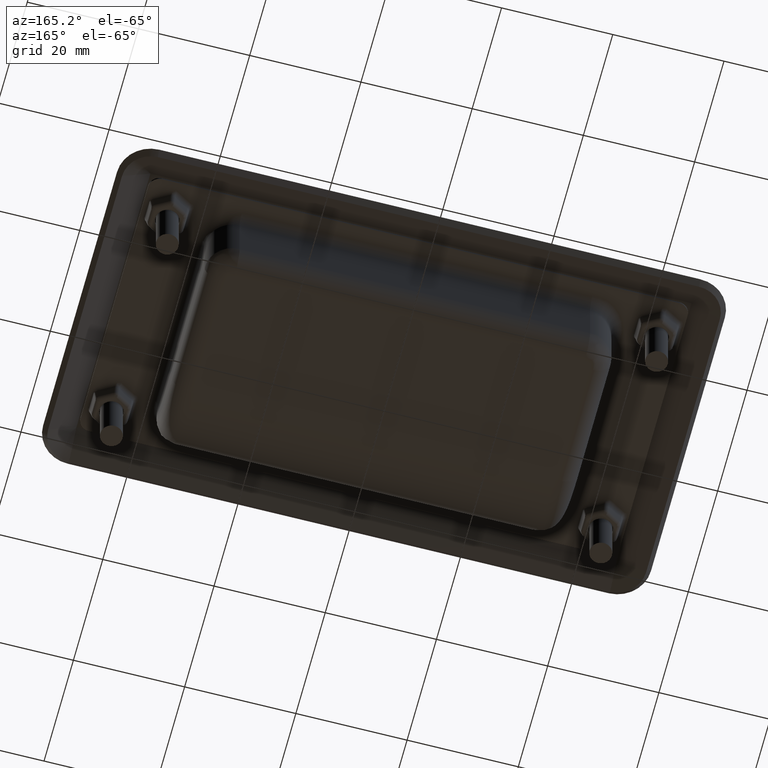
[diagram: clean part render]
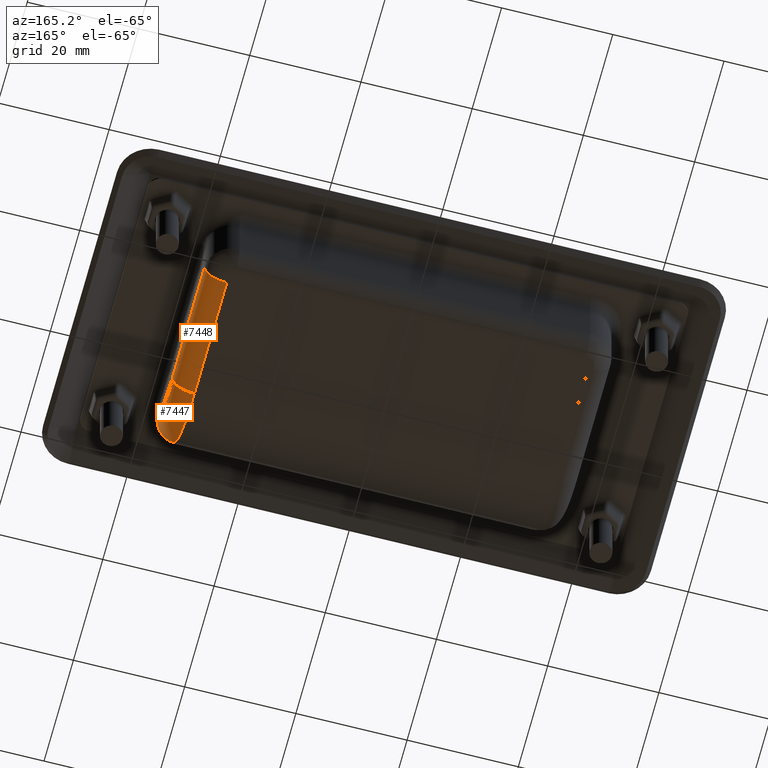
[diagram: same view with one multi-face feature highlighted, each face labeled with its STEP entity id]
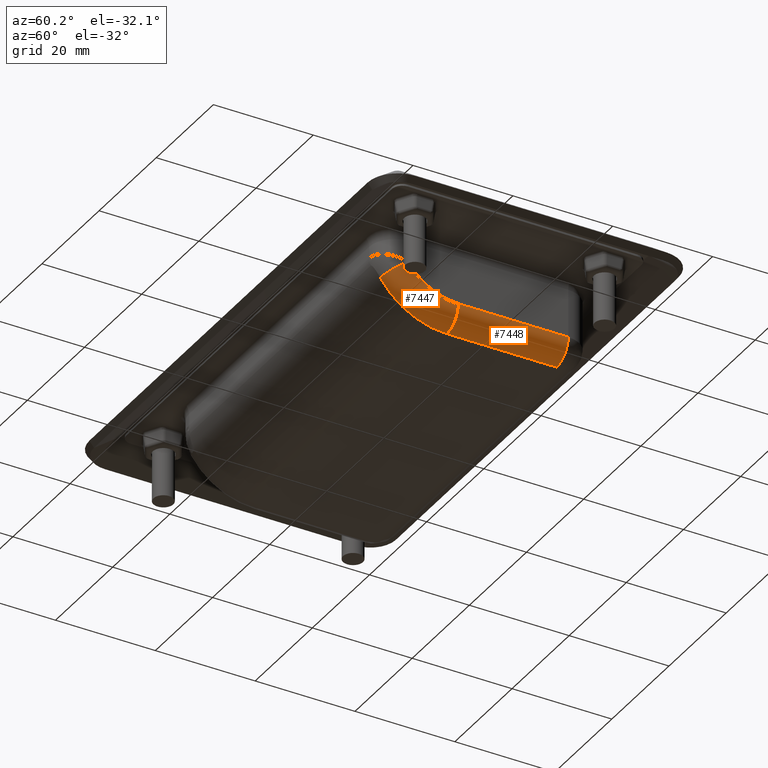
[diagram: same view with one multi-face feature highlighted, each face labeled with its STEP entity id]
A machine part, auxiliary view. The highlighted faces form ONE feature: a constant-radius fillet chain: 2 tangent blend faces with common blend radius 4 mm. The faces share edges in the B-rep.
A second angle (auxiliary view) of the same feature is appended — it is thin or edge-on in the first view.
Their STEP definitions:
[1] entity #7447 (Torus):
#31=TOROIDAL_SURFACE('',#8110,11.8640186915888,4.);
#1951=FACE_OUTER_BOUND('',#2459,.T.);
#2459=EDGE_LOOP('',(#5912,#5913,#5914,#5915));
#2893=CIRCLE('',#8109,4.);
#2894=CIRCLE('',#8111,4.);
#2895=CIRCLE('',#8112,11.8640186915888);
#2896=CIRCLE('',#8113,15.8640186915888);
#3445=VERTEX_POINT('',#14189);
#3446=VERTEX_POINT('',#14190);
#3447=VERTEX_POINT('',#14221);
#3448=VERTEX_POINT('',#14222);
#4295=EDGE_CURVE('',#3445,#3446,#2893,.T.);
#4298=EDGE_CURVE('',#3447,#3448,#2894,.T.);
#4299=EDGE_CURVE('',#3448,#3446,#2895,.T.);
#4300=EDGE_CURVE('',#3445,#3447,#2896,.T.);
#5912=ORIENTED_EDGE('',*,*,#4298,.T.);
#5913=ORIENTED_EDGE('',*,*,#4299,.T.);
#5914=ORIENTED_EDGE('',*,*,#4295,.F.);
#5915=ORIENTED_EDGE('',*,*,#4300,.T.);
#7447=ADVANCED_FACE('',(#1951),#31,.T.);
#8109=AXIS2_PLACEMENT_3D('',#14191,#9459,#9460);
#8110=AXIS2_PLACEMENT_3D('',#14220,#9461,#9462);
#8111=AXIS2_PLACEMENT_3D('',#14223,#9463,#9464);
#8112=AXIS2_PLACEMENT_3D('',#14224,#9465,#9466);
#8113=AXIS2_PLACEMENT_3D('',#14225,#9467,#9468);
#9459=DIRECTION('center_axis',(5.3264978463359E-16,0.538094191711696,0.842884713852456));
#9460=DIRECTION('ref_axis',(0.,0.842884713852456,-0.538094191711696));
#9461=DIRECTION('center_axis',(-1.,0.,0.));
#9462=DIRECTION('ref_axis',(0.,1.,4.47895800915082E-16));
#9463=DIRECTION('center_axis',(0.,1.,3.7470027081099E-16));
#9464=DIRECTION('ref_axis',(0.,3.7470027081099E-16,-1.));
#9465=DIRECTION('center_axis',(1.,0.,0.));
#9466=DIRECTION('ref_axis',(0.,0.334435986394752,-0.942418469154849));
#9467=DIRECTION('center_axis',(-1.,0.,0.));
#9468=DIRECTION('ref_axis',(0.,0.334435986394752,-0.942418469154849));
#14189=CARTESIAN_POINT('',(-32.5,19.3715388554098,-53.8723176235609));
#14190=CARTESIAN_POINT('',(-36.5,16.,-51.7199408567141));
#14191=CARTESIAN_POINT('Origin',(-32.5,16.,-51.7199408567141));
#14220=CARTESIAN_POINT('Origin',(-32.5,5.99999999999999,-45.3359813084112));
#14221=CARTESIAN_POINT('',(-32.5,6.,-61.2));
#14222=CARTESIAN_POINT('',(-36.5,6.,-57.2));
#14223=CARTESIAN_POINT('Origin',(-32.5,6.,-57.2));
#14224=CARTESIAN_POINT('Origin',(-36.5,5.99999999999999,-45.3359813084112));
#14225=CARTESIAN_POINT('Origin',(-32.5,5.99999999999999,-45.3359813084112));
[2] entity #7448 (Cylinder):
#498=LINE('',#14229,#1032);
#499=LINE('',#14230,#1033);
#1032=VECTOR('',#9473,22.);
#1033=VECTOR('',#9474,22.);
#1952=FACE_OUTER_BOUND('',#2460,.T.);
#2460=EDGE_LOOP('',(#5916,#5917,#5918,#5919));
#2894=CIRCLE('',#8111,4.);
#2897=CIRCLE('',#8115,4.);
#3379=VERTEX_POINT('',#13766);
#3447=VERTEX_POINT('',#14221);
#3448=VERTEX_POINT('',#14222);
#3449=VERTEX_POINT('',#14227);
#4298=EDGE_CURVE('',#3447,#3448,#2894,.T.);
#4301=EDGE_CURVE('',#3449,#3379,#2897,.T.);
#4302=EDGE_CURVE('',#3379,#3448,#498,.T.);
#4303=EDGE_CURVE('',#3447,#3449,#499,.T.);
#5916=ORIENTED_EDGE('',*,*,#4301,.T.);
#5917=ORIENTED_EDGE('',*,*,#4302,.T.);
#5918=ORIENTED_EDGE('',*,*,#4298,.F.);
#5919=ORIENTED_EDGE('',*,*,#4303,.T.);
#7109=CYLINDRICAL_SURFACE('',#8114,4.);
#7448=ADVANCED_FACE('',(#1952),#7109,.T.);
#8111=AXIS2_PLACEMENT_3D('',#14223,#9463,#9464);
#8114=AXIS2_PLACEMENT_3D('',#14226,#9469,#9470);
#8115=AXIS2_PLACEMENT_3D('',#14228,#9471,#9472);
#9463=DIRECTION('center_axis',(0.,1.,3.7470027081099E-16));
#9464=DIRECTION('ref_axis',(0.,3.7470027081099E-16,-1.));
#9469=DIRECTION('center_axis',(0.,-1.,-3.7470027081099E-16));
#9470=DIRECTION('ref_axis',(-0.707106781186547,2.64953102402887E-16,-0.707106781186548));
#9471=DIRECTION('center_axis',(0.,1.,3.7470027081099E-16));
#9472=DIRECTION('ref_axis',(0.,3.7470027081099E-16,-1.));
#9473=DIRECTION('',(0.,1.,3.7470027081099E-16));
#9474=DIRECTION('',(0.,-1.,-3.7470027081099E-16));
#13766=CARTESIAN_POINT('',(-36.5,-16.,-57.2));
#14221=CARTESIAN_POINT('',(-32.5,6.,-61.2));
#14222=CARTESIAN_POINT('',(-36.5,6.,-57.2));
#14223=CARTESIAN_POINT('Origin',(-32.5,6.,-57.2));
#14226=CARTESIAN_POINT('Origin',(-32.5,-10.5,-57.2));
#14227=CARTESIAN_POINT('',(-32.5,-16.,-61.2));
#14228=CARTESIAN_POINT('Origin',(-32.5,-16.,-57.2));
#14229=CARTESIAN_POINT('',(-36.5,-10.5,-57.2));
#14230=CARTESIAN_POINT('',(-32.5,-10.5,-61.2));